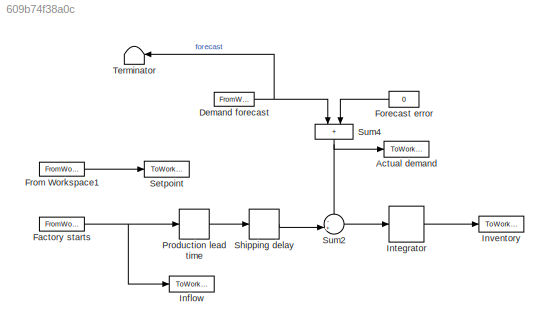
MODEL slx_609b74f38a0c
KIND model
CONFIG AbsTol = 1e-6
CONFIG EnableMultiTasking = off
CONFIG FixedStep = auto
CONFIG MaxStep = auto
CONFIG MinStep = auto
CONFIG RelTol = 1e-3
CONFIG SampleTimeConstraint = Unconstrained
CONFIG SolverName = ode15s
CONFIG StartTime = 0.0
CONFIG StopTime = 250
BLOCK [ToWorkspace] Actual demand
  MaxDataPoints = inf
  Ports = [1]
  SampleTime = Ts
  VariableName = d
BLOCK [FromWorkspace] Demand forecast
  VariableName = df
BLOCK [FromWorkspace] Factory starts
  VariableName = u
BLOCK [Constant] Forecast error
  Value = 0
BLOCK [FromWorkspace] From Workspace1
  VariableName = r
BLOCK [ToWorkspace] Inflow
  MaxDataPoints = inf
  Ports = [1]
  SampleTime = Ts
  VariableName = u
BLOCK [DiscreteIntegrator] Integrator
  ICPrevOutput = DiscIntNeverNeededParam
  ICPrevScaledInput = DiscIntNeverNeededParam
  InitialConditionSetting = Auto
  IntegratorMethod = Integration: Backward Euler
  Ports = [1, 1]
  SampleTime = -1
  gainval = 1
BLOCK [ToWorkspace] Inventory
  MaxDataPoints = inf
  Ports = [1]
  SampleTime = Ts
  VariableName = y
BLOCK [TransportDelay] Production lead time
  DelayTime = thetap1
  Ports = [1, 1]
BLOCK [ToWorkspace] Setpoint
  MaxDataPoints = inf
  Ports = [1]
  SampleTime = Ts
  VariableName = r
BLOCK [TransportDelay] Shipping delay
  DelayTime = thetap2
  Ports = [1, 1]
BLOCK [Sum] Sum2
  Inputs = -+|
  Ports = [2, 1]
BLOCK [Sum] Sum4
  IconShape = rectangular
  InputSameDT = on
  NameLocation = left
  OutDataTypeStr = Inherit: Same as first input
  Ports = [2, 1]
  SaturateOnIntegerOverflow = on
BLOCK [Terminator] Terminator
NET Demand forecast:1 -> Sum4:1, Terminator:1
NET Factory starts:1 -> Inflow:1, Production lead time:1
LINE Forecast error:1 -> Sum4:2
LINE From Workspace1:1 -> Setpoint:1
LINE Integrator:1 -> Inventory:1
LINE Production lead time:1 -> Shipping delay:1
LINE Shipping delay:1 -> Sum2:2
LINE Sum2:1 -> Integrator:1
NET Sum4:1 -> Actual demand:1, Sum2:1
note: NET lines group one-source signal fan-out (src -> all destinations, sorted); 1:1 wires keep LINE
